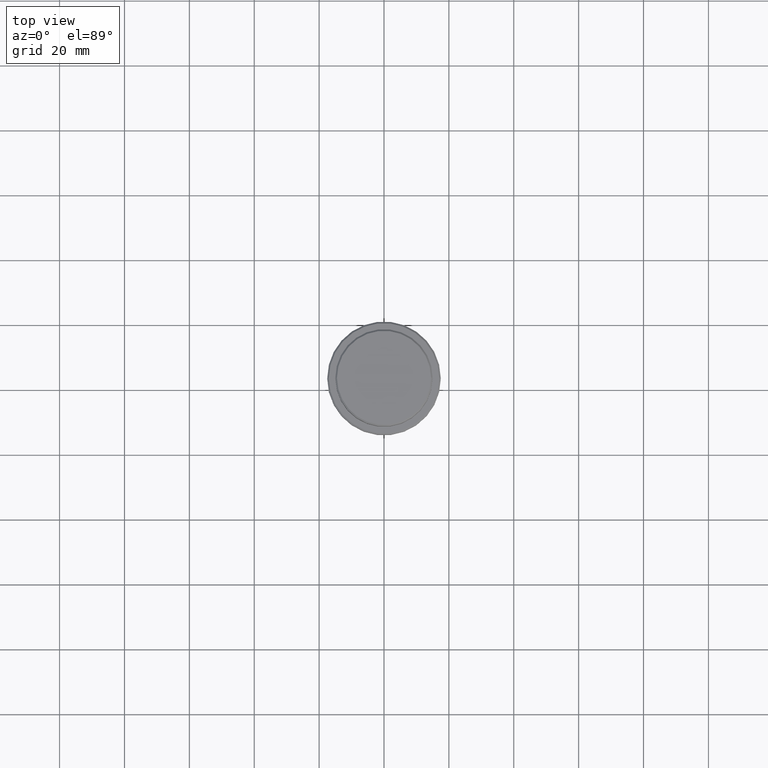
[diagram: clean part render]
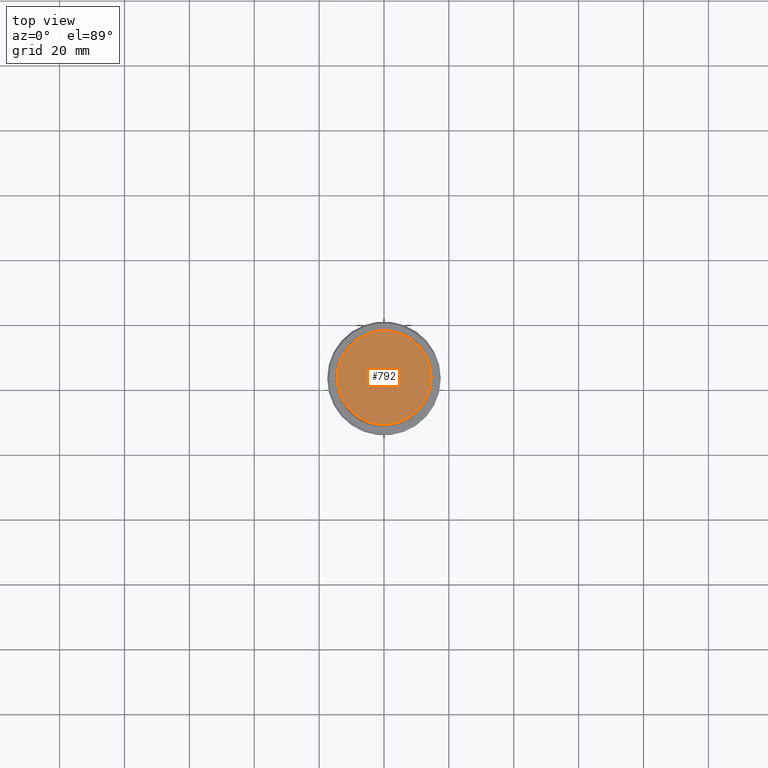
[diagram: same view with one face highlighted and labeled with its STEP entity id]
A machine part, top view. The second image highlights one B-rep face of the part: STEP entity #792.
In plain terms, the highlighted planar face has unit normal (0, -0, 1).
Its self-contained STEP definition (entity closure, byte-faithful):
#3 = DIRECTION ( 'NONE',  ( 1.000000000000000000, 0.000000000000000000, 0.000000000000000000 ) ) ;
#14 = CARTESIAN_POINT ( 'NONE',  ( 14.49999999999998401, 1.806354028742345013E-15, 0.000000000000000000 ) ) ;
#144 = EDGE_CURVE ( 'NONE', #548, #676, #474, .T. ) ;
#159 = CARTESIAN_POINT ( 'NONE',  ( -14.49999999999998401, 0.000000000000000000, 0.000000000000000000 ) ) ;
#224 = AXIS2_PLACEMENT_3D ( 'NONE', #646, #980, #876 ) ;
#239 = DIRECTION ( 'NONE',  ( 0.000000000000000000, -0.000000000000000000, 1.000000000000000000 ) ) ;
#317 = AXIS2_PLACEMENT_3D ( 'NONE', #491, #921, #400 ) ;
#342 = FACE_OUTER_BOUND ( 'NONE', #558, .T. ) ;
#400 = DIRECTION ( 'NONE',  ( 1.000000000000000000, 0.000000000000000000, 0.000000000000000000 ) ) ;
#474 = CIRCLE ( 'NONE', #224, 14.49999999999998401 ) ;
#491 = CARTESIAN_POINT ( 'NONE',  ( 0.000000000000000000, 0.000000000000000000, 0.000000000000000000 ) ) ;
#548 = VERTEX_POINT ( 'NONE', #14 ) ;
#558 = EDGE_LOOP ( 'NONE', ( #584, #1242 ) ) ;
#584 = ORIENTED_EDGE ( 'NONE', *, *, #873, .T. ) ;
#646 = CARTESIAN_POINT ( 'NONE',  ( 0.000000000000000000, 0.000000000000000000, 0.000000000000000000 ) ) ;
#676 = VERTEX_POINT ( 'NONE', #159 ) ;
#792 = ADVANCED_FACE ( 'NONE', ( #342 ), #971, .T. ) ;
#840 = CIRCLE ( 'NONE', #317, 14.49999999999998401 ) ;
#873 = EDGE_CURVE ( 'NONE', #676, #548, #840, .T. ) ;
#876 = DIRECTION ( 'NONE',  ( 1.000000000000000000, 0.000000000000000000, 0.000000000000000000 ) ) ;
#921 = DIRECTION ( 'NONE',  ( -0.000000000000000000, -0.000000000000000000, 1.000000000000000000 ) ) ;
#971 = PLANE ( 'NONE',  #1044 ) ;
#980 = DIRECTION ( 'NONE',  ( -0.000000000000000000, -0.000000000000000000, 1.000000000000000000 ) ) ;
#1044 = AXIS2_PLACEMENT_3D ( 'NONE', #1331, #239, #3 ) ;
#1242 = ORIENTED_EDGE ( 'NONE', *, *, #144, .T. ) ;
#1331 = CARTESIAN_POINT ( 'NONE',  ( 0.000000000000000000, 0.000000000000000000, 0.000000000000000000 ) ) ;